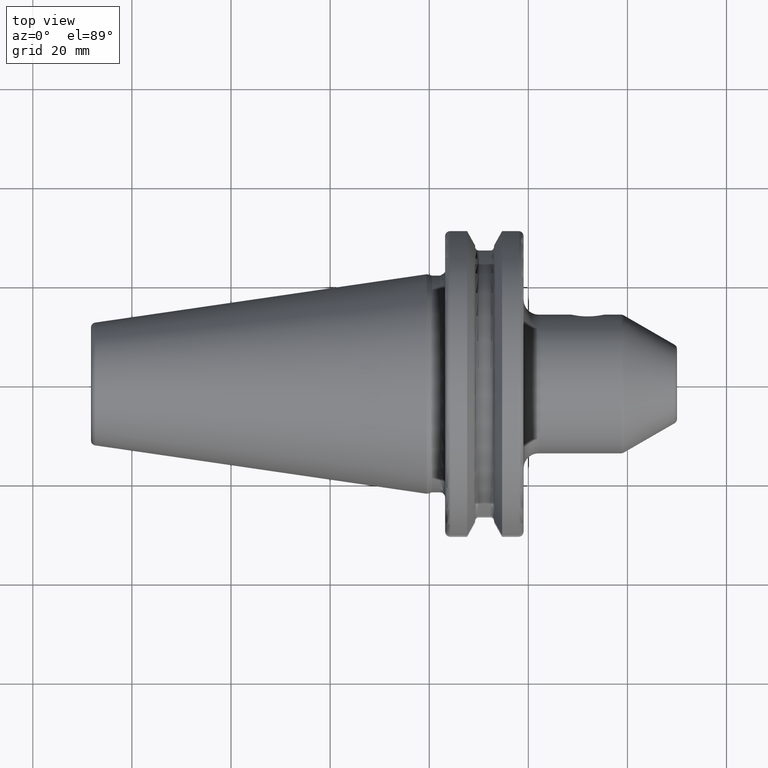
[diagram: clean part render]
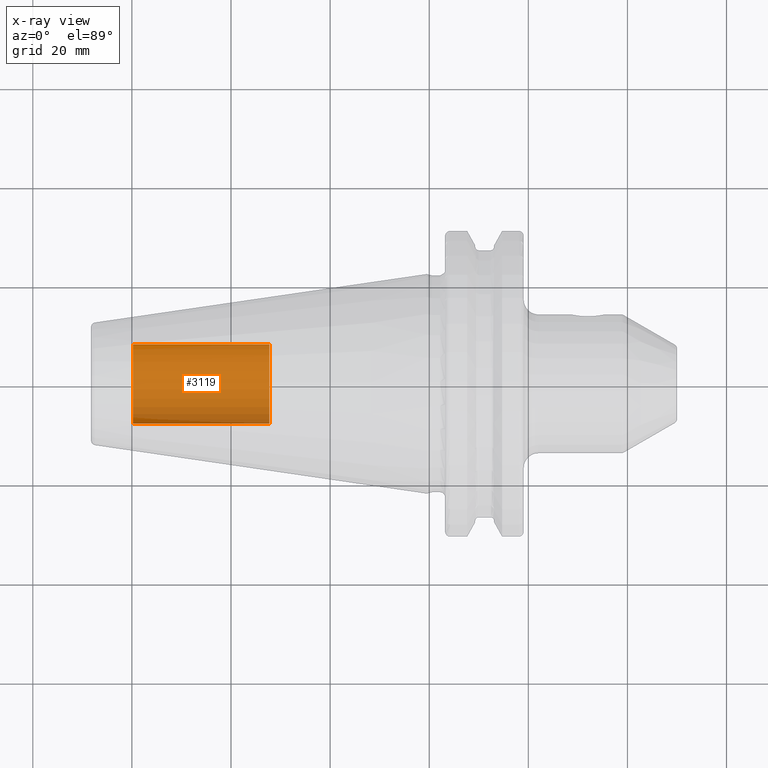
[diagram: x-ray — body ghosted, one internal face saturated and labeled with its STEP entity id]
A machine part, top view, then the same camera in x-ray: the body is ghosted and one INTERNAL B-rep face — a face not visible from any outside direction — is saturated and labeled: STEP entity #3119.
In plain terms, the highlighted cylindrical surface (partial cylindrical patch) has radius 8.0028 mm, axis along (1, 0, 0).
Its self-contained STEP definition (entity closure, byte-faithful):
#3054=CARTESIAN_POINT('',(-5.98E1,0.E0,0.E0));
#3055=DIRECTION('',(-1.E0,0.E0,0.E0));
#3056=DIRECTION('',(0.E0,1.E0,0.E0));
#3057=AXIS2_PLACEMENT_3D('',#3054,#3055,#3056);
#3059=DIRECTION('',(1.E0,0.E0,0.E0));
#3060=VECTOR('',#3059,2.755E1);
#3061=CARTESIAN_POINT('',(-5.98E1,-8.00275E0,0.E0));
#3062=LINE('',#3061,#3060);
#3068=DIRECTION('',(1.E0,0.E0,0.E0));
#3069=VECTOR('',#3068,2.755E1);
#3070=CARTESIAN_POINT('',(-5.98E1,8.00275E0,0.E0));
#3071=LINE('',#3070,#3069);
#3077=CARTESIAN_POINT('',(-3.225E1,0.E0,0.E0));
#3078=DIRECTION('',(1.E0,0.E0,0.E0));
#3079=DIRECTION('',(0.E0,-1.E0,0.E0));
#3080=AXIS2_PLACEMENT_3D('',#3077,#3078,#3079);
#3092=CARTESIAN_POINT('',(-5.98E1,8.00275E0,0.E0));
#3093=CARTESIAN_POINT('',(-5.98E1,-8.00275E0,0.E0));
#3094=VERTEX_POINT('',#3092);
#3095=VERTEX_POINT('',#3093);
#3096=CARTESIAN_POINT('',(-3.225E1,8.00275E0,0.E0));
#3097=CARTESIAN_POINT('',(-3.225E1,-8.00275E0,0.E0));
#3098=VERTEX_POINT('',#3096);
#3099=VERTEX_POINT('',#3097);
#3104=CARTESIAN_POINT('',(-5.98E1,0.E0,0.E0));
#3105=DIRECTION('',(1.E0,0.E0,0.E0));
#3106=DIRECTION('',(0.E0,1.E0,0.E0));
#3107=AXIS2_PLACEMENT_3D('',#3104,#3105,#3106);
#3108=CYLINDRICAL_SURFACE('',#3107,8.00275E0);
#3110=ORIENTED_EDGE('',*,*,#3109,.T.);
#3112=ORIENTED_EDGE('',*,*,#3111,.T.);
#3114=ORIENTED_EDGE('',*,*,#3113,.T.);
#3116=ORIENTED_EDGE('',*,*,#3115,.F.);
#3117=EDGE_LOOP('',(#3110,#3112,#3114,#3116));
#3118=FACE_OUTER_BOUND('',#3117,.F.);
#3119=ADVANCED_FACE('',(#3118),#3108,.T.);
#3058=CIRCLE('',#3057,8.00275E0);
#3081=CIRCLE('',#3080,8.00275E0);
#3109=EDGE_CURVE('',#3094,#3095,#3058,.T.);
#3111=EDGE_CURVE('',#3095,#3099,#3062,.T.);
#3113=EDGE_CURVE('',#3099,#3098,#3081,.T.);
#3115=EDGE_CURVE('',#3094,#3098,#3071,.T.);